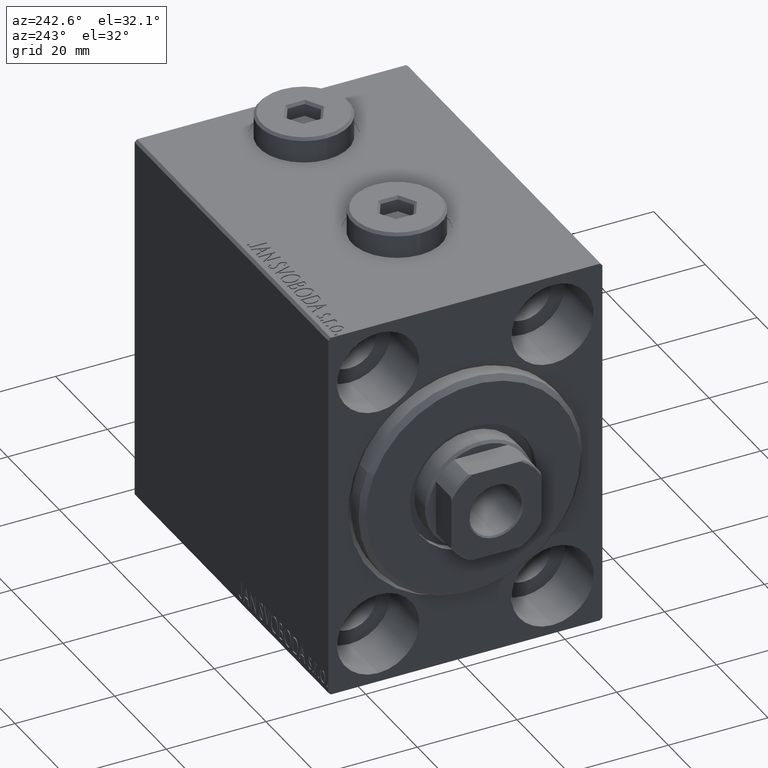
[diagram: clean part render]
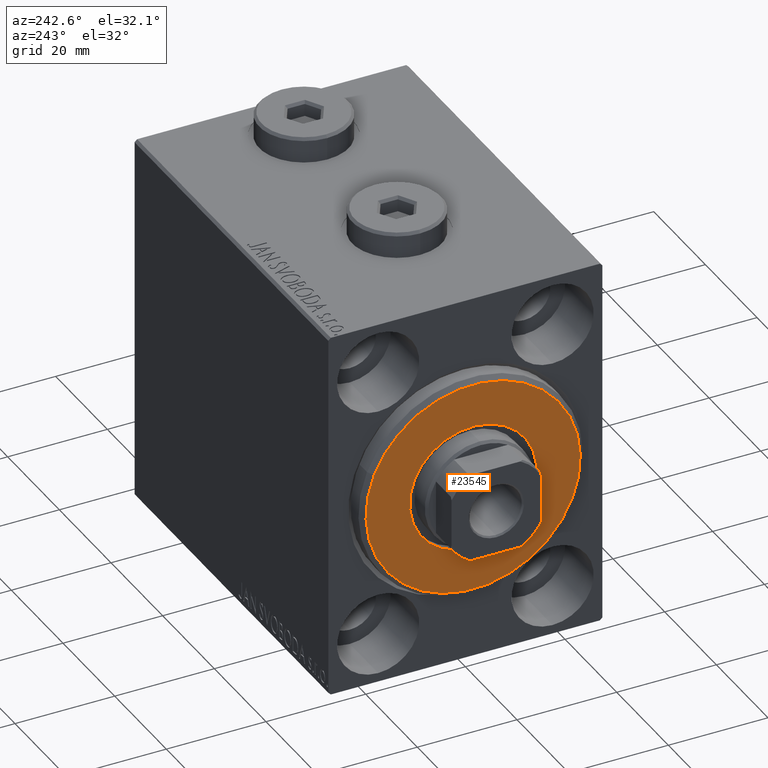
[diagram: same view with one face highlighted and labeled with its STEP entity id]
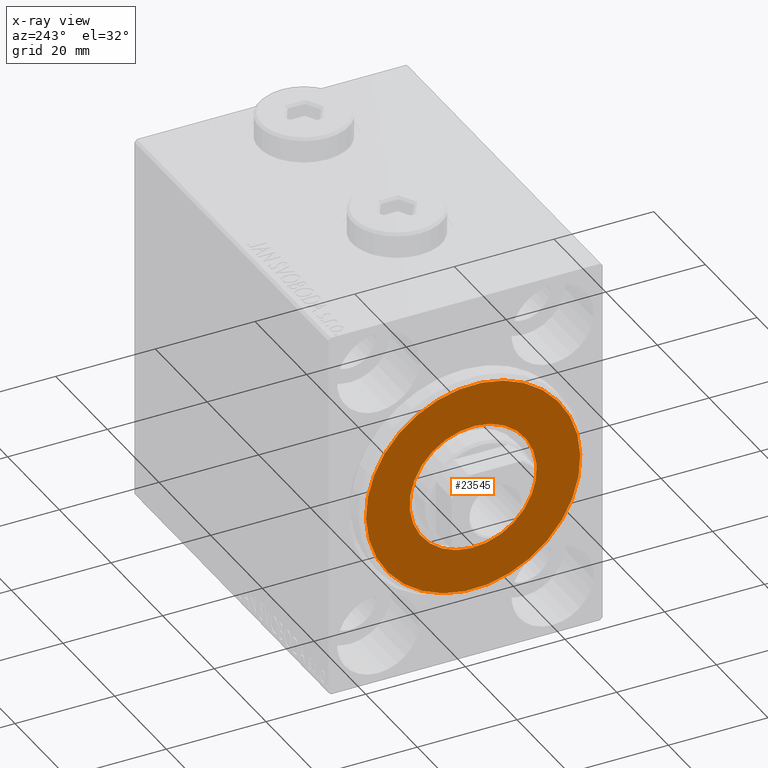
[diagram: x-ray of the same camera — body ghosted, the highlighted face saturated]
A machine part, auxiliary view. The second image highlights one B-rep face of the part: STEP entity #23545.
The next image is the same camera in x-ray: the body ghosted, the highlighted face saturated — about 0% of this face is hidden behind the body in this view.
In plain terms, the highlighted planar face has unit normal (-1, 0, 0).
Its self-contained STEP definition (entity closure, byte-faithful):
#302 = PLANE ( 'NONE',  #11030 ) ;
#336 = DIRECTION ( 'NONE',  ( 0.000000000000000000, 0.000000000000000000, -1.000000000000000000 ) ) ;
#2061 = DIRECTION ( 'NONE',  ( -1.000000000000000000, 0.000000000000000000, -0.000000000000000000 ) ) ;
#5711 = CARTESIAN_POINT ( 'NONE',  ( 3.000000000000000000, 0.000000000000000000, 0.000000000000000000 ) ) ;
#7787 = ORIENTED_EDGE ( 'NONE', *, *, #36388, .T. ) ;
#8042 = DIRECTION ( 'NONE',  ( 0.000000000000000000, 0.000000000000000000, -1.000000000000000000 ) ) ;
#8043 = CARTESIAN_POINT ( 'NONE',  ( 3.000000000000000000, 0.000000000000000000, 0.000000000000000000 ) ) ;
#8507 = EDGE_CURVE ( 'NONE', #35000, #14304, #43382, .T. ) ;
#9156 = CARTESIAN_POINT ( 'NONE',  ( 3.000000000000000000, 1.561424668912874914E-15, -12.75000000000000000 ) ) ;
#9725 = DIRECTION ( 'NONE',  ( 1.000000000000000000, -0.000000000000000000, 0.000000000000000000 ) ) ;
#9794 = CIRCLE ( 'NONE', #35318, 21.50000000000000355 ) ;
#10831 = CARTESIAN_POINT ( 'NONE',  ( 3.000000000000000000, 0.000000000000000000, 0.000000000000000000 ) ) ;
#11030 = AXIS2_PLACEMENT_3D ( 'NONE', #8043, #38451, #14227 ) ;
#11390 = AXIS2_PLACEMENT_3D ( 'NONE', #18794, #32937, #8042 ) ;
#11467 = CARTESIAN_POINT ( 'NONE',  ( 3.000000000000000000, 0.000000000000000000, 21.50000000000000355 ) ) ;
#13209 = ORIENTED_EDGE ( 'NONE', *, *, #8507, .T. ) ;
#14227 = DIRECTION ( 'NONE',  ( 0.000000000000000000, 0.000000000000000000, -1.000000000000000000 ) ) ;
#14304 = VERTEX_POINT ( 'NONE', #30683 ) ;
#15771 = CIRCLE ( 'NONE', #11390, 21.50000000000000355 ) ;
#15772 = DIRECTION ( 'NONE',  ( 0.000000000000000000, 0.000000000000000000, -1.000000000000000000 ) ) ;
#18794 = CARTESIAN_POINT ( 'NONE',  ( 3.000000000000000000, 0.000000000000000000, 0.000000000000000000 ) ) ;
#23545 = ADVANCED_FACE ( 'NONE', ( #31817, #35689 ), #302, .T. ) ;
#23653 = DIRECTION ( 'NONE',  ( 0.000000000000000000, 0.000000000000000000, -1.000000000000000000 ) ) ;
#24660 = EDGE_CURVE ( 'NONE', #14304, #35000, #25623, .T. ) ;
#24915 = VERTEX_POINT ( 'NONE', #36269 ) ;
#25623 = CIRCLE ( 'NONE', #35120, 12.75000000000000000 ) ;
#27942 = DIRECTION ( 'NONE',  ( -1.000000000000000000, 0.000000000000000000, -0.000000000000000000 ) ) ;
#28758 = AXIS2_PLACEMENT_3D ( 'NONE', #10831, #27942, #336 ) ;
#30683 = CARTESIAN_POINT ( 'NONE',  ( 3.000000000000000000, 0.000000000000000000, 12.75000000000000000 ) ) ;
#31817 = FACE_OUTER_BOUND ( 'NONE', #43092, .T. ) ;
#32937 = DIRECTION ( 'NONE',  ( 1.000000000000000000, -0.000000000000000000, 0.000000000000000000 ) ) ;
#34976 = VERTEX_POINT ( 'NONE', #11467 ) ;
#35000 = VERTEX_POINT ( 'NONE', #9156 ) ;
#35120 = AXIS2_PLACEMENT_3D ( 'NONE', #5711, #2061, #15772 ) ;
#35318 = AXIS2_PLACEMENT_3D ( 'NONE', #41050, #9725, #23653 ) ;
#35361 = ORIENTED_EDGE ( 'NONE', *, *, #24660, .T. ) ;
#35689 = FACE_BOUND ( 'NONE', #38783, .T. ) ;
#36269 = CARTESIAN_POINT ( 'NONE',  ( 3.000000000000000000, 2.694222958124177598E-15, -21.50000000000000355 ) ) ;
#36388 = EDGE_CURVE ( 'NONE', #24915, #34976, #9794, .T. ) ;
#38451 = DIRECTION ( 'NONE',  ( 1.000000000000000000, -0.000000000000000000, 0.000000000000000000 ) ) ;
#38783 = EDGE_LOOP ( 'NONE', ( #35361, #13209 ) ) ;
#41050 = CARTESIAN_POINT ( 'NONE',  ( 3.000000000000000000, 0.000000000000000000, 0.000000000000000000 ) ) ;
#43092 = EDGE_LOOP ( 'NONE', ( #43504, #7787 ) ) ;
#43382 = CIRCLE ( 'NONE', #28758, 12.75000000000000000 ) ;
#43504 = ORIENTED_EDGE ( 'NONE', *, *, #44106, .T. ) ;
#44106 = EDGE_CURVE ( 'NONE', #34976, #24915, #15771, .T. ) ;